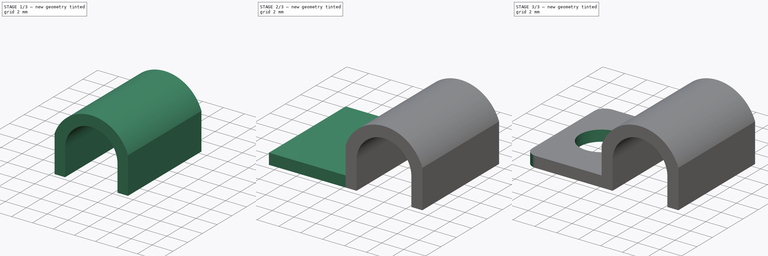
[diagram: build sequence overview — one tinted view per stage of 3, left to right]
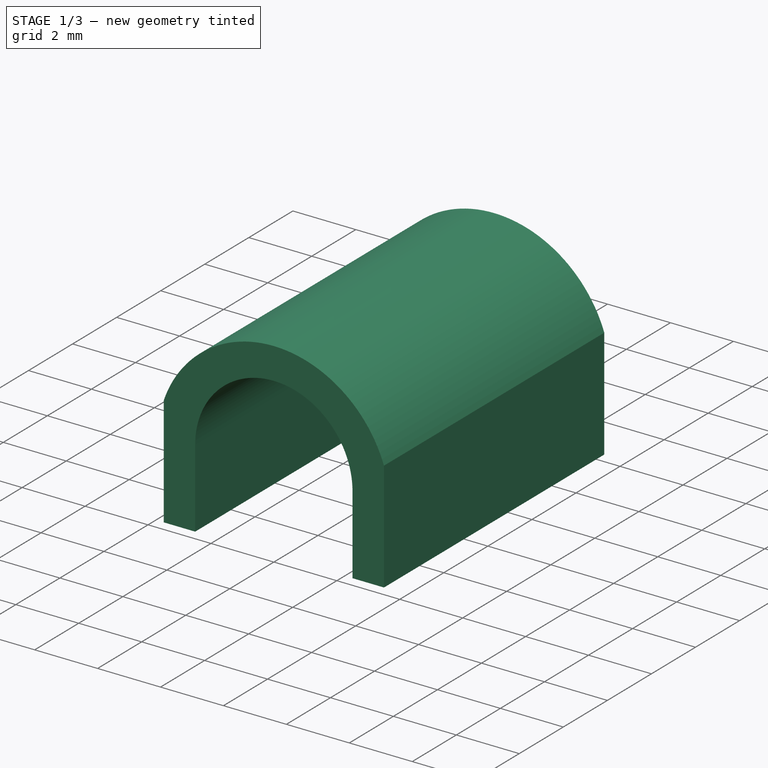
[diagram: stage 1 of 3 — iso view after this stage's code; geometry added in this stage tinted green]
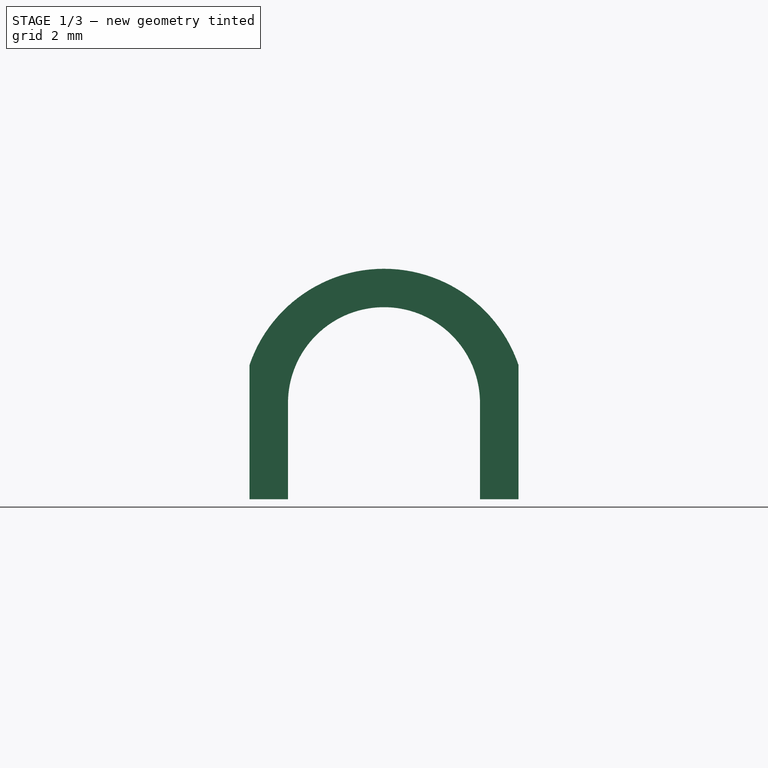
[diagram: stage 1 of 3 — front view after this stage's code; geometry added in this stage tinted green]
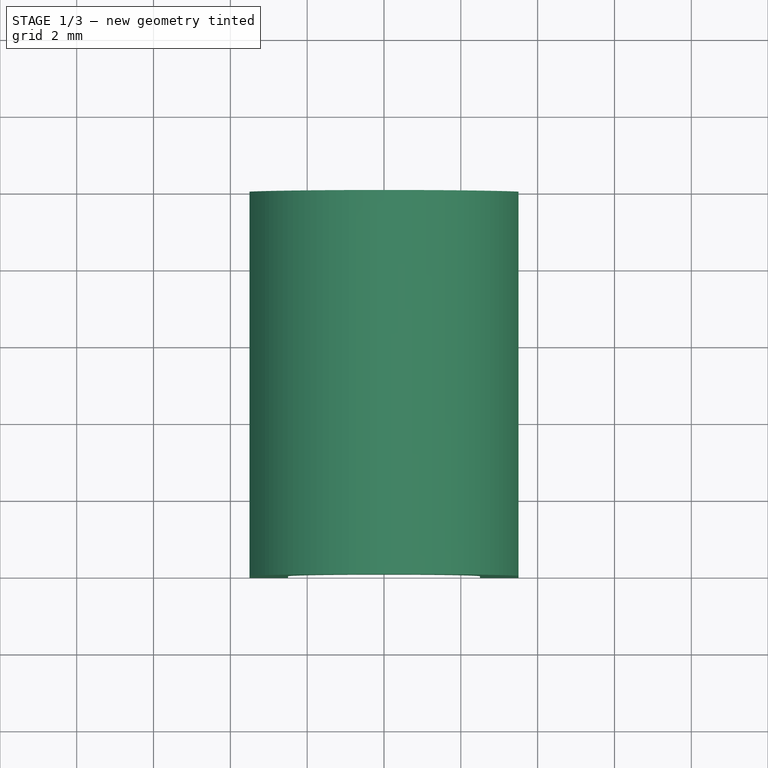
[diagram: stage 1 of 3 — top view after this stage's code; geometry added in this stage tinted green]
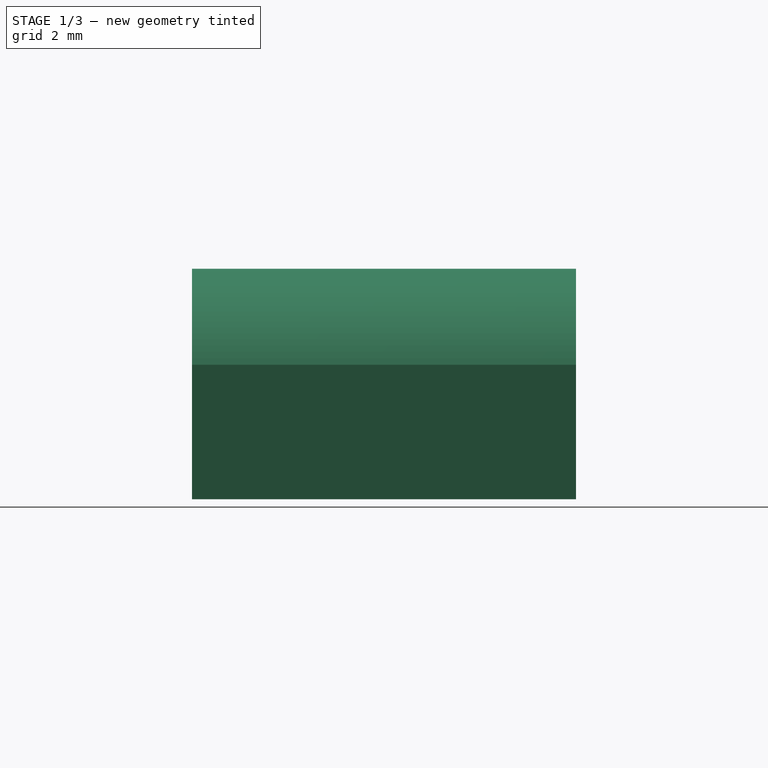
[diagram: stage 1 of 3 — right view after this stage's code; geometry added in this stage tinted green]
FCSTD DOCUMENT  (FreeCAD 0.19R24291 (Git))
Label: cable tie down
License: All rights reserved
LicenseURL: http://en.wikipedia.org/wiki/All_rights_reserved
objects: Sketcher::SketchObject×4, PartDesign::Pad×2, PartDesign::Pocket×2, Spreadsheet::Sheet×1, PartDesign::Fillet×1, PartDesign::Body×1
note: 15 computed .brp shape members not serialized (recipe doc carries the construction recipe); baked Part::Feature solids carry a one-line shape summary decoded from their .brp

FEATURE [Sketcher::SketchObject] Sketch
  FullyConstrained = false
  MapMode = 5
  Placement = pos=(0,0,0) rot=(1,0,0;1.5708rad)
  Support = -> [XZ_Plane]
  expr: Constraints[2] = (Spreadsheet.diameter + Spreadsheet.thickness * 2) / 2
  expr: Constraints[0] = Spreadsheet.diameter + Spreadsheet.thickness * 2
  expr: Constraints[14] = Spreadsheet.diameter + Spreadsheet.thickness
  sketch-geometry (6):
    g0: LineSegment StartX=-3.5 StartY=3.5 StartZ=0 EndX=3.5 EndY=3.5 EndZ=0
    g1: ArcOfCircle CenterX=2e-16 CenterY=2.3 CenterZ=0 NormalX=0 NormalY=0 NormalZ=1 AngleXU=0 Radius=3.7 StartAngle=0.330297 EndAngle=2.8113
    g2: GeomPoint X=-2e-15 Y=6 Z=0
    g3: LineSegment StartX=-3.5 StartY=3.5 StartZ=0 EndX=-3.5 EndY=0 EndZ=0
    g4: LineSegment StartX=-3.5 StartY=0 StartZ=0 EndX=3.5 EndY=0 EndZ=0
    g5: LineSegment StartX=3.5 StartY=0 StartZ=0 EndX=3.5 EndY=3.5 EndZ=0
  constraints (15):
    c: DistanceX(g0,g0) = 7
    c: Symmetric(g0,g0,g-2)
    c: DistanceY(g-1,g0) = 3.5
    c: Coincident(g0,g1) = 1.5708
    c: PointOnObject(g2,g1)
    c: PointOnObject(g3,g-1)
    c: Vertical(g3)
    c: Coincident(g3,g4)
    c: PointOnObject(g4,g-1)
    c: Coincident(g4,g5)
    c: Vertical(g5)
    c: Coincident(g5,g1)
    c: Coincident(g3,g0)
    c: Coincident(g1,g3)
    c: DistanceY(g4,g2) = 6
FEATURE [PartDesign::Pad] Pad
  Direction = (1,1,1)
  Length = 10
  Length2 = 100
  Placement = pos=(0,0,0) rot=(1,0,0;1.5708rad)
  Profile = -> Sketch
  Type = 0
FEATURE [Sketcher::SketchObject] Sketch001
  FullyConstrained = true
  MapMode = 5
  Placement = pos=(0,-10,6.7e-15) rot=(1,0,0;1.5708rad)
  Support = -> [Pad]
  expr: Constraints[2] = Spreadsheet.diameter / 2
  expr: Constraints[16] = Spreadsheet.diameter
  expr: Constraints[0] = Spreadsheet.diameter
  sketch-geometry (8):
    g0: LineSegment StartX=-2.5 StartY=2.5 StartZ=0 EndX=2.5 EndY=2.5 EndZ=0
    g1: ArcOfCircle CenterX=2e-16 CenterY=2.5 CenterZ=0 NormalX=0 NormalY=0 NormalZ=1 AngleXU=0 Radius=2.5 StartAngle=1e-16 EndAngle=3.14159
    g2: LineSegment StartX=-2.5 StartY=2.5 StartZ=0 EndX=-2.5 EndY=0 EndZ=0
    g3: LineSegment StartX=-2.5 StartY=0 StartZ=0 EndX=2.5 EndY=0 EndZ=0
    g4: LineSegment StartX=2.5 StartY=0 StartZ=0 EndX=2.5 EndY=2.5 EndZ=0
    g5: GeomPoint X=-1.4746e-05 Y=5 Z=0
    g6: GeomPoint X=-1.4746e-05 Y=5 Z=0
    g7: GeomPoint X=2.5 Y=0 Z=0
  constraints (17):
    c: DistanceX(g0,g0) = 5
    c: Symmetric(g0,g0,g-2)
    c: DistanceY(g-1,g0) = 2.5
    c: Coincident(g0,g1) = 1.5708
    c: Tangent(g1,g2) = -1.5708
    c: Coincident(g2,g3)
    c: PointOnObject(g3,g-1)
    c: Horizontal(g3)
    c: Coincident(g3,g4)
    c: Coincident(g4,g1)
    c: Vertical(g4)
    c: PointOnObject(g5,g1)
    c: Coincident(g6,g5)
    c: Coincident(g7,g3)
    c: Coincident(g1,g0)
    c: Vertical(g2)
    c: DistanceY(g3,g5) = 5
FEATURE [PartDesign::Pocket] Pocket
  BaseFeature = -> Pad
  Length = 5
  Length2 = 100
  Placement = pos=(0,0,0) rot=(1,0,0;1.5708rad)
  Profile = -> Sketch001
  Type = 1
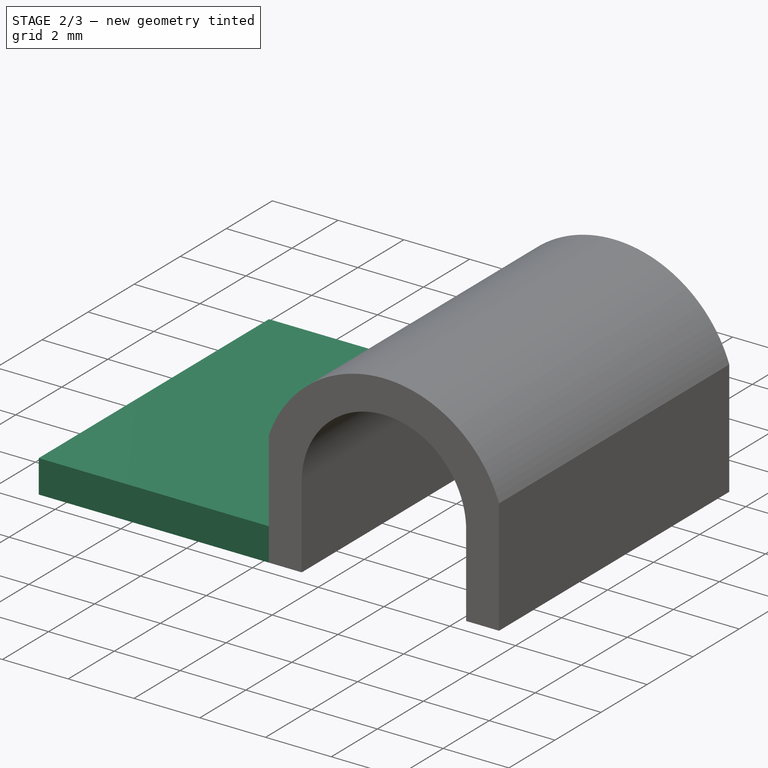
[diagram: stage 2 of 3 — iso view after this stage's code; geometry added in this stage tinted green]
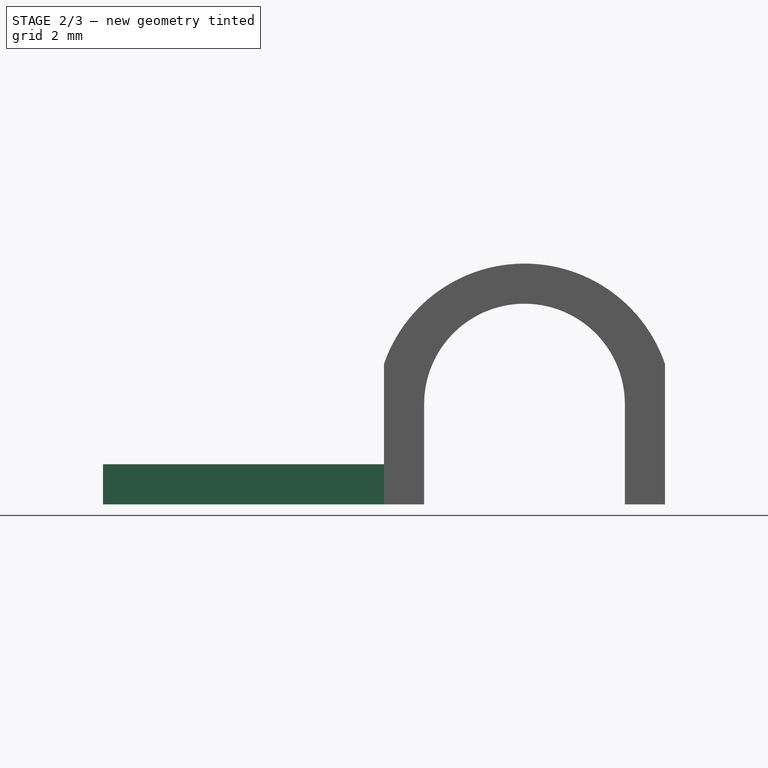
[diagram: stage 2 of 3 — front view after this stage's code; geometry added in this stage tinted green]
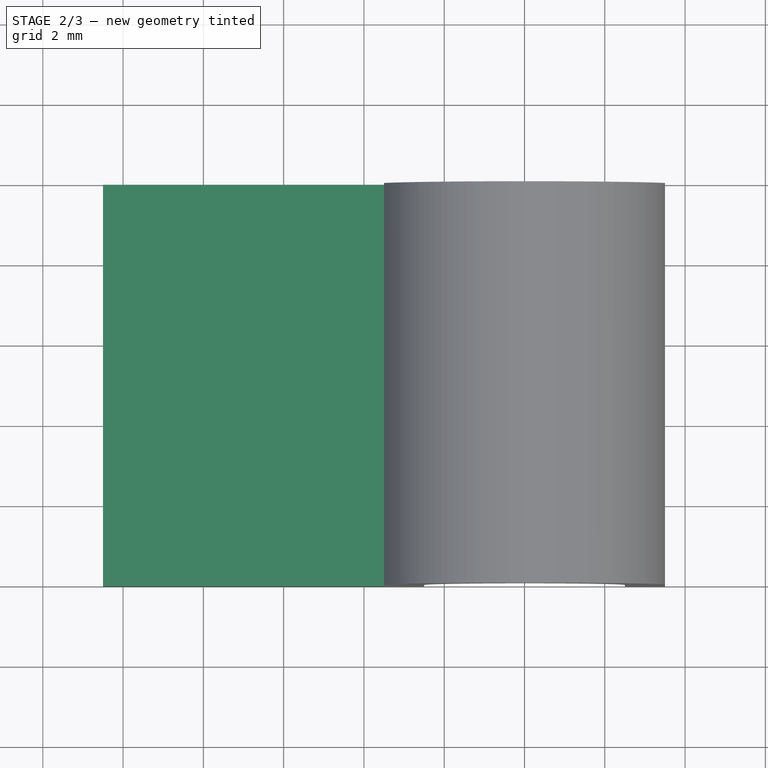
[diagram: stage 2 of 3 — top view after this stage's code; geometry added in this stage tinted green]
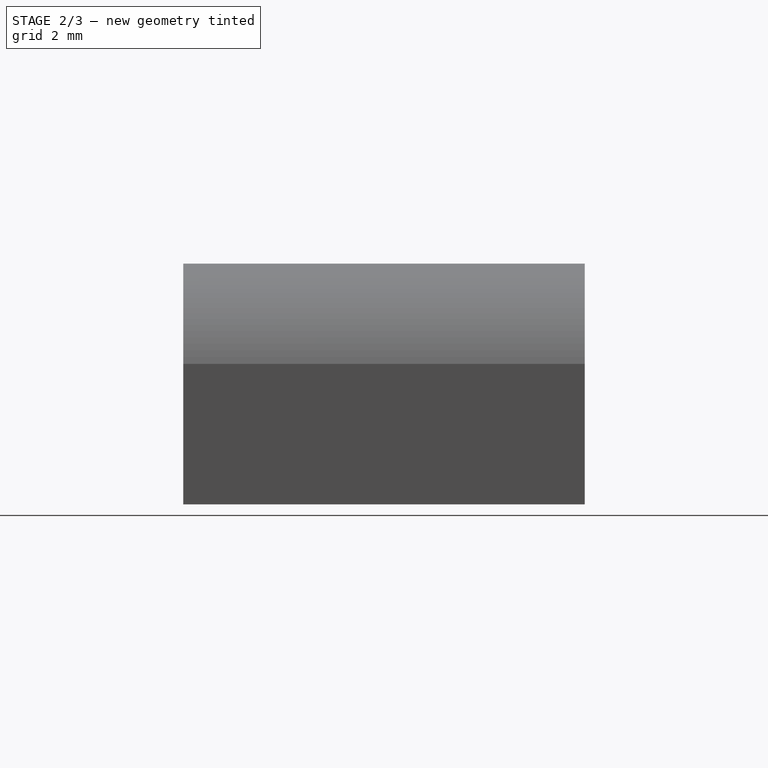
[diagram: stage 2 of 3 — right view after this stage's code; geometry added in this stage tinted green]
FEATURE [Sketcher::SketchObject] Sketch002
  ExternalGeometry = -> [Pocket]
  FullyConstrained = true
  MapMode = 5
  Placement = pos=(-3.5,0,0) rot=(0.707107,0,-0.707107;3.14159rad)
  Support = -> [Pocket]
  expr: Constraints[10] = Spreadsheet.thickness
  sketch-geometry (4):
    g0: LineSegment StartX=-1.11e-14 StartY=10 StartZ=0 EndX=-1 EndY=10 EndZ=0
    g1: LineSegment StartX=-1 StartY=10 StartZ=0 EndX=-1 EndY=-1.8e-15 EndZ=0
    g2: LineSegment StartX=-1 StartY=-1.8e-15 StartZ=0 EndX=-1.11e-14 EndY=-1.8e-15 EndZ=0
    g3: LineSegment StartX=-1.11e-14 StartY=-1.8e-15 StartZ=0 EndX=-1.11e-14 EndY=10 EndZ=0
  constraints (11):
    c: Coincident(g0,g1)
    c: Coincident(g1,g2)
    c: Coincident(g2,g3)
    c: Coincident(g3,g0)
    c: Horizontal(g0)
    c: Horizontal(g2)
    c: Vertical(g1)
    c: Vertical(g3)
    c: Coincident(g0,g-4)
    c: PointOnObject(g1,g-5)
    c: DistanceX(g2,g2) = 1
FEATURE [PartDesign::Pad] Pad001
  BaseFeature = -> Pocket
  Direction = (1,1,1)
  Length = 7
  Length2 = 100
  Placement = pos=(0,0,0) rot=(1,0,0;1.5708rad)
  Profile = -> Sketch002
  Type = 0
  expr: Length = Spreadsheet.diameter + 2mm
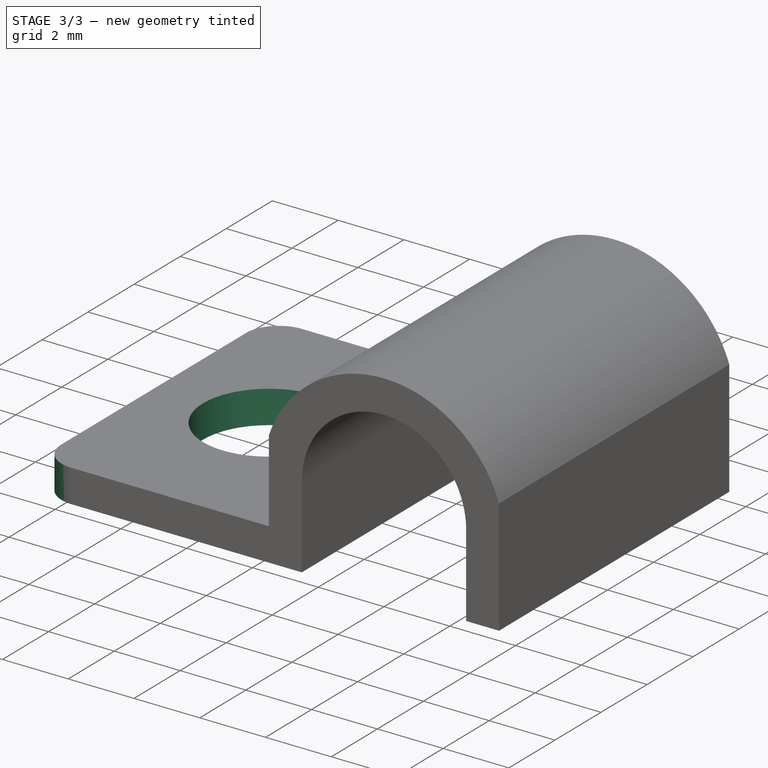
[diagram: stage 3 of 3 — iso view after this stage's code; geometry added in this stage tinted green]
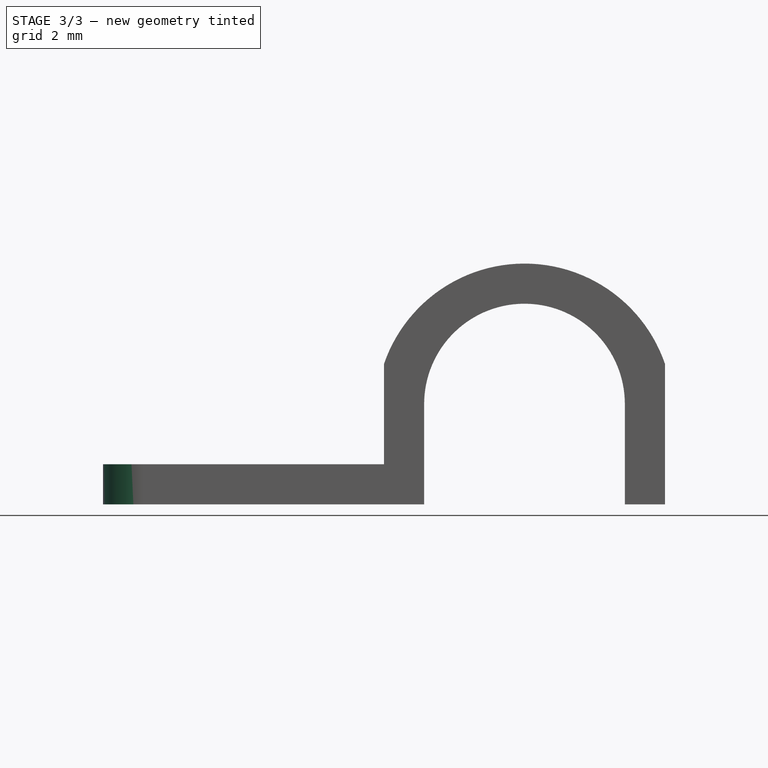
[diagram: stage 3 of 3 — front view after this stage's code; geometry added in this stage tinted green]
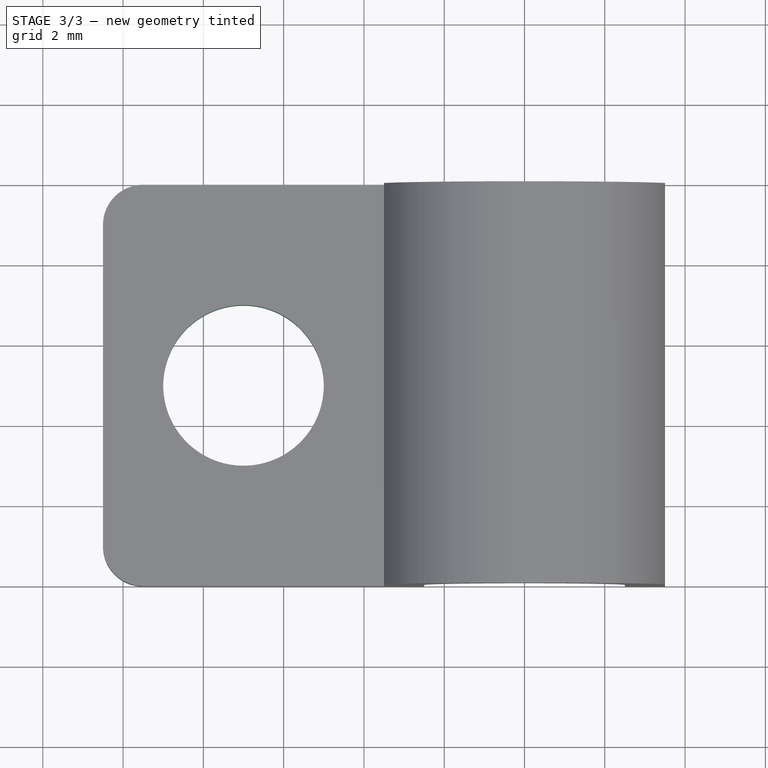
[diagram: stage 3 of 3 — top view after this stage's code; geometry added in this stage tinted green]
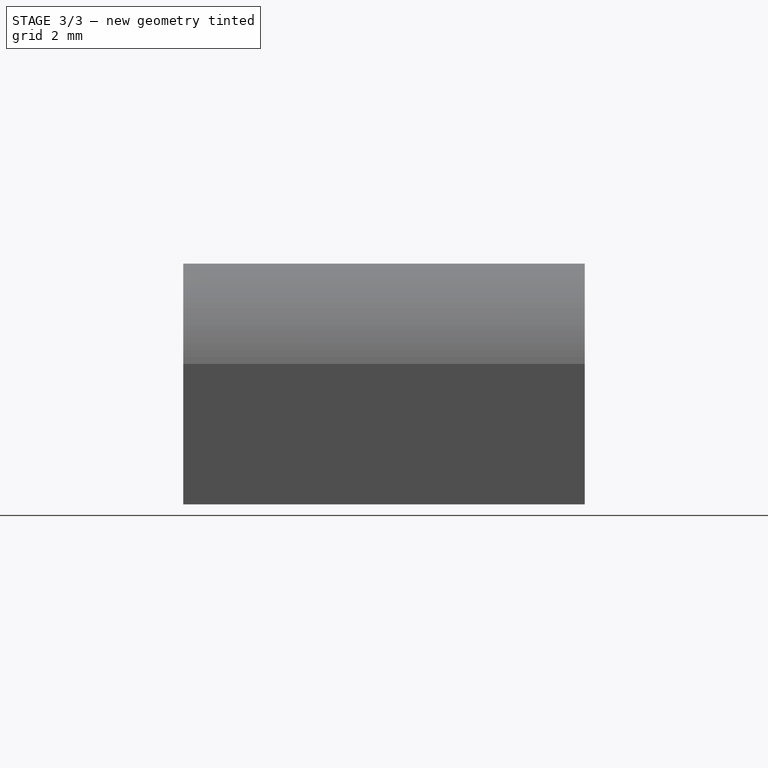
[diagram: stage 3 of 3 — right view after this stage's code; geometry added in this stage tinted green]
FEATURE [Sketcher::SketchObject] Sketch003
  ExternalGeometry = -> [Pad001]
  FullyConstrained = true
  MapMode = 5
  Placement = pos=(-2e-16,4e-16,1) rot=(0,0,1;3.14159rad)
  Support = -> [Pad001]
  expr: Constraints[0] = Spreadsheet.screw_diameter / 2
  sketch-geometry (1):
    g0: Circle CenterX=7 CenterY=5 CenterZ=0 NormalX=0 NormalY=0 NormalZ=1 AngleXU=0 Radius=2
  constraints (2):
    c: Radius(g0) = 2
    c: Symmetric(g-6,g-4,g0)
FEATURE [PartDesign::Pocket] Pocket001
  BaseFeature = -> Pad001
  Length = 5
  Length2 = 100
  Placement = pos=(0,0,0) rot=(1,0,0;1.5708rad)
  Profile = -> Sketch003
  Type = 0
FEATURE [Spreadsheet::Sheet] Spreadsheet
  cells = A1=Diameter; B1(diameter)==5mm; A2=Thickness; B2(thickness)==1mm; A3=ScrewDiameter; B3(screw_diameter)==4mm
FEATURE [PartDesign::Fillet] Fillet
  Base = -> Pocket001 [Edge35,Edge33]
  BaseFeature = -> Pocket001
  Placement = pos=(0,0,0) rot=(1,0,0;1.5708rad)
  Radius = 1
  SupportTransform = false
FEATURE [PartDesign::Body] Body
  Group = -> [Sketch,Pad,Sketch001,Pocket,Sketch002,Pad001,Sketch003,Pocket001,Fillet]
  Origin = -> Origin
  Tip = -> Fillet
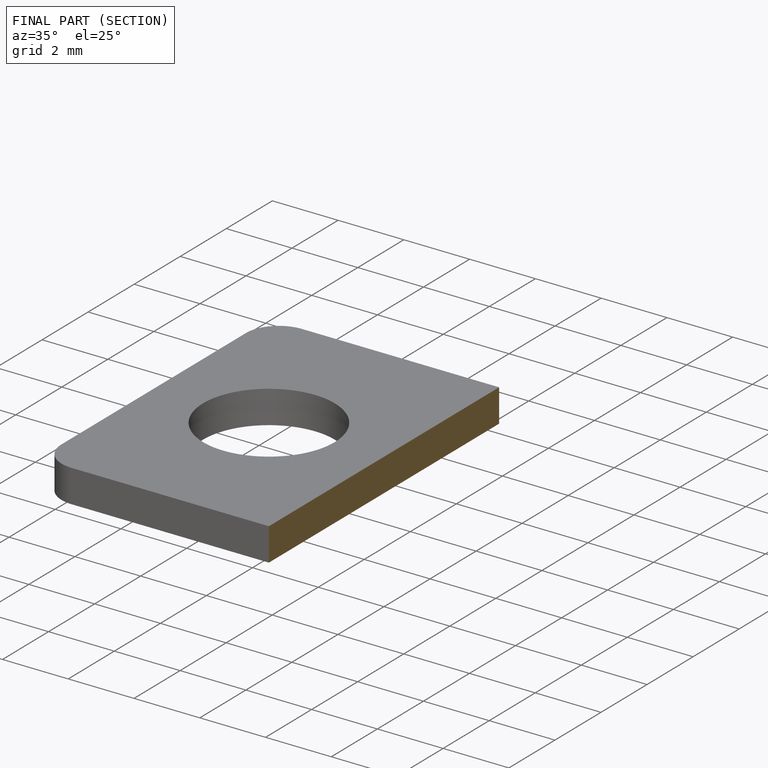
[diagram: finished part — half-section view (interior)]
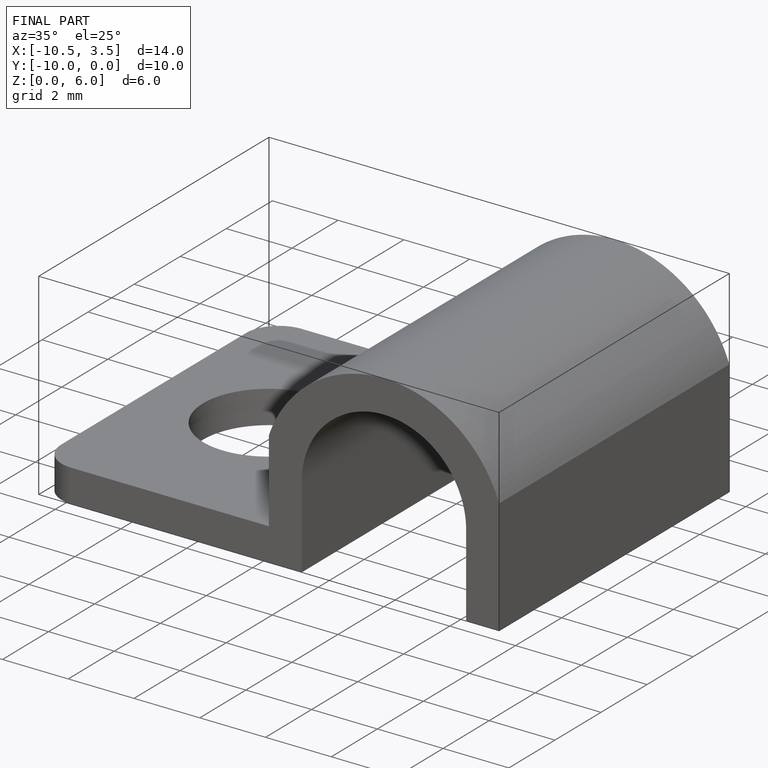
[diagram: finished part — iso view with bounding-box wireframe]
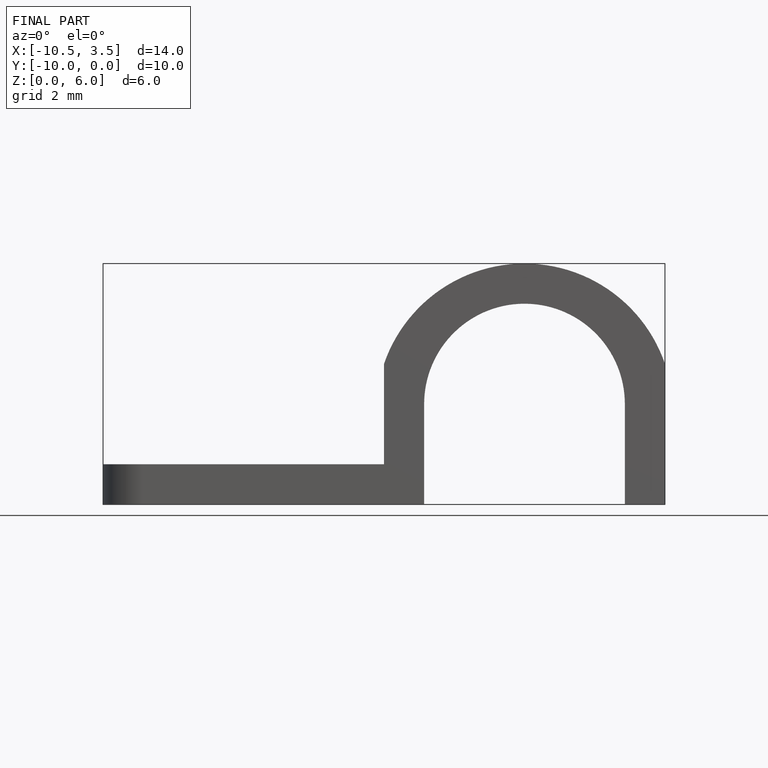
[diagram: finished part — front view with bounding-box wireframe]
